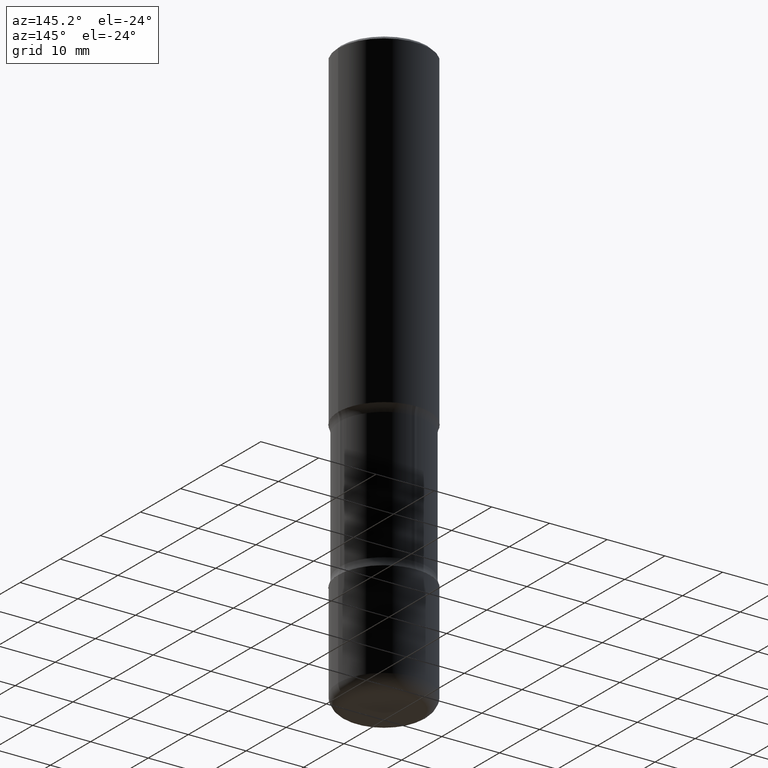
[diagram: clean part render]
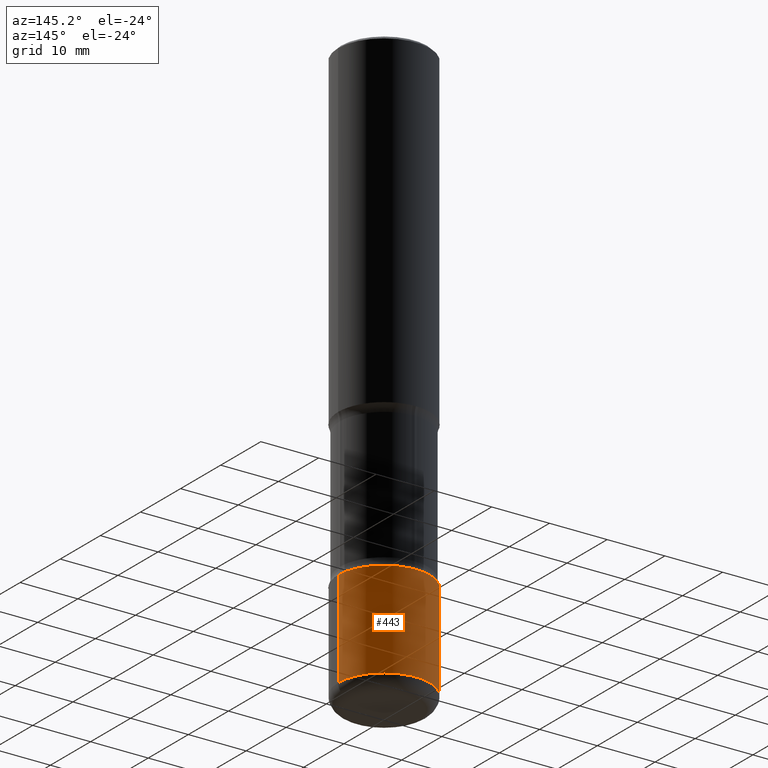
[diagram: same view with one face highlighted and labeled with its STEP entity id]
A machine part, auxiliary view. The second image highlights one B-rep face of the part: STEP entity #443.
In plain terms, the highlighted cylindrical surface (partial cylindrical patch) has radius 7.9375 mm, axis along (-0, 0, 1).
Its self-contained STEP definition (entity closure, byte-faithful):
#28 = ORIENTED_EDGE ( 'NONE', *, *, #601, .T. ) ;
#29 = EDGE_CURVE ( 'NONE', #513, #150, #801, .T. ) ;
#50 = CARTESIAN_POINT ( 'NONE',  ( 9.561783032183883600E-29, -1.365169203487670064E-14, -3.910000000000000142 ) ) ;
#51 = EDGE_CURVE ( 'NONE', #120, #188, #594, .T. ) ;
#61 = AXIS2_PLACEMENT_3D ( 'NONE', #560, #315, #618 ) ;
#109 = ORIENTED_EDGE ( 'NONE', *, *, #29, .T. ) ;
#120 = VERTEX_POINT ( 'NONE', #251 ) ;
#134 = DIRECTION ( 'NONE',  ( 1.000000000000000000, -6.982962677686266711E-15, 4.876176775795936353E-29 ) ) ;
#150 = VERTEX_POINT ( 'NONE', #446 ) ;
#179 = CARTESIAN_POINT ( 'NONE',  ( 0.3125000000000000000, -1.583386787165366057E-14, -3.910000000000000142 ) ) ;
#183 = DIRECTION ( 'NONE',  ( 1.000000000000000000, -6.982962677686269077E-15, 0.000000000000000000 ) ) ;
#188 = VERTEX_POINT ( 'NONE', #318 ) ;
#249 = DIRECTION ( 'NONE',  ( -2.445468806185136877E-29, 3.491481338843145188E-15, 1.000000000000000000 ) ) ;
#251 = CARTESIAN_POINT ( 'NONE',  ( 0.3125000000000000000, -1.352949018801718277E-14, -3.250000000000000000 ) ) ;
#257 = AXIS2_PLACEMENT_3D ( 'NONE', #50, #492, #183 ) ;
#273 = VECTOR ( 'NONE', #562, 39.37007874015748143 ) ;
#297 = ORIENTED_EDGE ( 'NONE', *, *, #51, .F. ) ;
#306 = LINE ( 'NONE', #555, #462 ) ;
#315 = DIRECTION ( 'NONE',  ( -2.445468806185136597E-29, 3.491481338843145583E-15, 1.000000000000000000 ) ) ;
#318 = CARTESIAN_POINT ( 'NONE',  ( -0.3125000000000000000, -1.027905714380814945E-14, -3.250000000000000000 ) ) ;
#346 = EDGE_LOOP ( 'NONE', ( #109, #28, #297, #598 ) ) ;
#439 = CARTESIAN_POINT ( 'NONE',  ( 0.000000000000000000, 0.000000000000000000, 0.000000000000000000 ) ) ;
#441 = CARTESIAN_POINT ( 'NONE',  ( 0.3125000000000000000, -2.182175836776958347E-15, 1.523805242436230075E-29 ) ) ;
#443 = ADVANCED_FACE ( 'NONE', ( #800 ), #620, .T. ) ;
#446 = CARTESIAN_POINT ( 'NONE',  ( -0.3125000000000000000, -1.143124598562638756E-14, -3.910000000000000142 ) ) ;
#462 = VECTOR ( 'NONE', #249, 39.37007874015748143 ) ;
#492 = DIRECTION ( 'NONE',  ( -2.445468806185136597E-29, 3.491481338843145583E-15, 1.000000000000000000 ) ) ;
#499 = EDGE_CURVE ( 'NONE', #513, #120, #631, .T. ) ;
#513 = VERTEX_POINT ( 'NONE', #179 ) ;
#555 = CARTESIAN_POINT ( 'NONE',  ( -0.3125000000000000000, 2.220446049250313081E-15, -1.537167215704658232E-29 ) ) ;
#560 = CARTESIAN_POINT ( 'NONE',  ( 7.947773620101693940E-29, -1.134731435124022443E-14, -3.250000000000000000 ) ) ;
#562 = DIRECTION ( 'NONE',  ( -2.445468806185136877E-29, 3.491481338843145188E-15, 1.000000000000000000 ) ) ;
#594 = CIRCLE ( 'NONE', #61, 0.3125000000000000000 ) ;
#598 = ORIENTED_EDGE ( 'NONE', *, *, #499, .F. ) ;
#601 = EDGE_CURVE ( 'NONE', #150, #188, #306, .T. ) ;
#618 = DIRECTION ( 'NONE',  ( 1.000000000000000000, -6.982962677686269077E-15, 0.000000000000000000 ) ) ;
#620 = CYLINDRICAL_SURFACE ( 'NONE', #740, 0.3125000000000000000 ) ;
#631 = LINE ( 'NONE', #441, #273 ) ;
#695 = DIRECTION ( 'NONE',  ( -2.445468806185136597E-29, 3.491481338843145583E-15, 1.000000000000000000 ) ) ;
#740 = AXIS2_PLACEMENT_3D ( 'NONE', #439, #695, #134 ) ;
#800 = FACE_OUTER_BOUND ( 'NONE', #346, .T. ) ;
#801 = CIRCLE ( 'NONE', #257, 0.3125000000000000000 ) ;